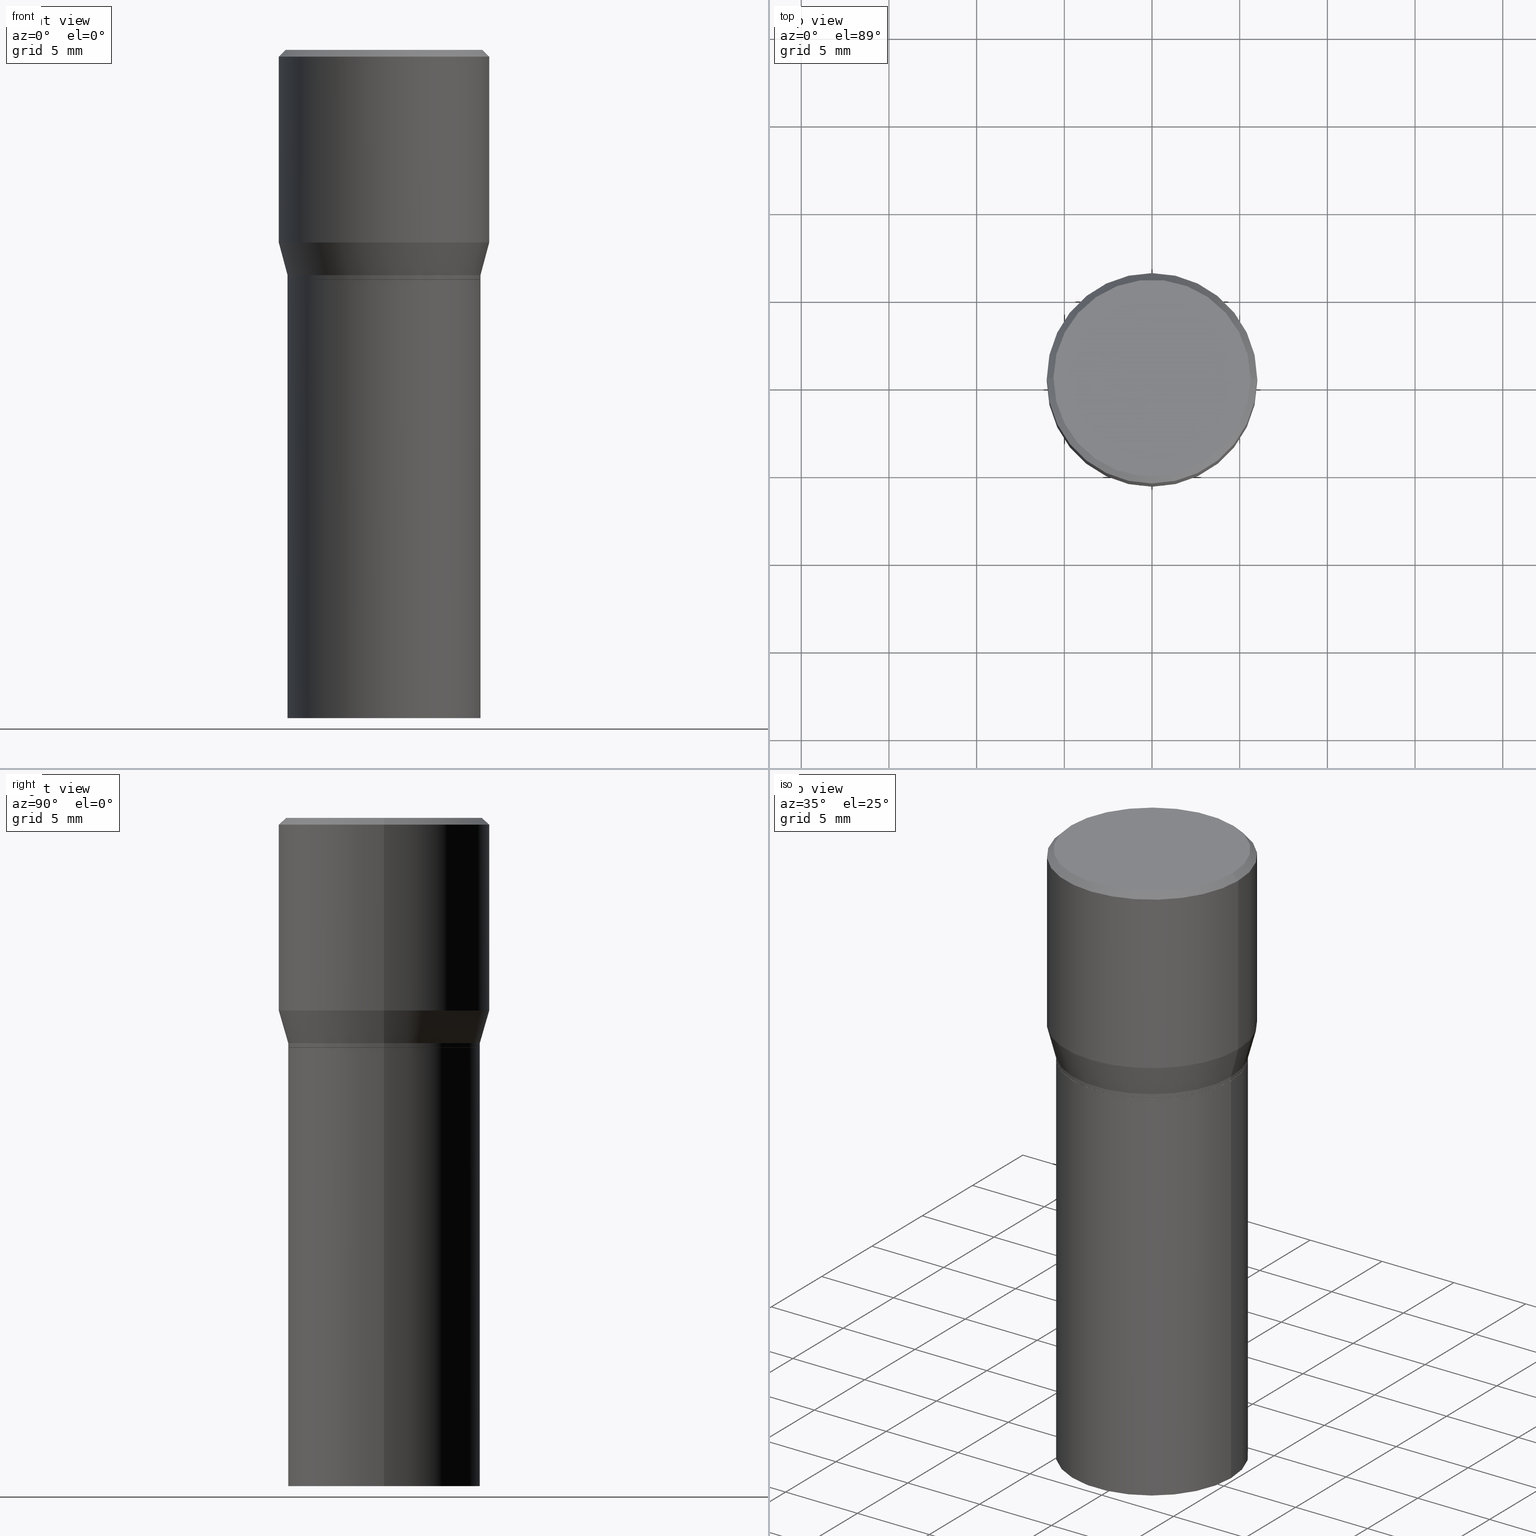
[diagram: canonical four-view strip — front | top / right | iso, engineering-drawing reading convention]
A machine part, canonical four-view strip (front | top / right | iso — engineering-drawing reading convention). The complete STEP part file that produces these views, byte-faithful:
ISO-10303-21;
HEADER;
FILE_DESCRIPTION (( 'STEP AP203' ),
    '1' );
FILE_NAME ('48514.STEP',
    '2024-03-12T19:28:06',
    ( '' ),
    ( '' ),
    'SwSTEP 2.0',
    'SolidWorks 2023',
    '' );
FILE_SCHEMA (( 'CONFIG_CONTROL_DESIGN' ));
ENDSEC;

DATA;
#1 = EDGE_LOOP ( 'NONE', ( #137, #136, #26, #104 ) ) ;
#2 = CALENDAR_DATE ( 2024, 12, 3 ) ;
#3 = AXIS2_PLACEMENT_3D ( 'NONE', #87, #150, #299 ) ;
#4 = PLANE ( 'NONE',  #93 ) ;
#5 = EDGE_CURVE ( 'NONE', #217, #208, #198, .T. ) ;
#6 = LINE ( 'NONE', #401, #260 ) ;
#7 = ORIENTED_EDGE ( 'NONE', *, *, #428, .F. ) ;
#8 = DIRECTION ( 'NONE',  ( -2.445468806185136597E-29, 3.491481338843145583E-15, 1.000000000000000000 ) ) ;
#9 = ORIENTED_EDGE ( 'NONE', *, *, #449, .T. ) ;
#10 = CIRCLE ( 'NONE', #43, 0.2212000000000000077 ) ;
#11 = PERSON_AND_ORGANIZATION ( #294, #389 ) ;
#12 = LOCAL_TIME ( 15, 28, 6.000000000000000000, #105 ) ;
#13 = DIRECTION ( 'NONE',  ( 1.000000000000000000, -6.982962677686266711E-15, 0.000000000000000000 ) ) ;
#14 = DIRECTION ( 'NONE',  ( -2.445468806185136597E-29, 3.491481338843145583E-15, 1.000000000000000000 ) ) ;
#15 = DIRECTION ( 'NONE',  ( -2.445468806185136597E-29, 3.491481338843145583E-15, 1.000000000000000000 ) ) ;
#16 = PERSON_AND_ORGANIZATION_ROLE ( 'classification_officer' ) ;
#17 = ADVANCED_FACE ( 'NONE', ( #259 ), #35, .T. ) ;
#18 = AXIS2_PLACEMENT_3D ( 'NONE', #80, #138, #313 ) ;
#19 = DIRECTION ( 'NONE',  ( -2.445468806185136597E-29, 3.491481338843145583E-15, 1.000000000000000000 ) ) ;
#20 = ORIENTED_EDGE ( 'NONE', *, *, #155, .T. ) ;
#21 = CARTESIAN_POINT ( 'NONE',  ( 1.057335613469222325E-29, -1.509595033060739709E-15, -0.4323652016312719004 ) ) ;
#22 = EDGE_CURVE ( 'NONE', #464, #269, #386, .T. ) ;
#23 = CIRCLE ( 'NONE', #280, 0.2361999999999999933 ) ;
#24 = FACE_OUTER_BOUND ( 'NONE', #193, .T. ) ;
#25 = LOCAL_TIME ( 15, 28, 6.000000000000000000, #424 ) ;
#26 = ORIENTED_EDGE ( 'NONE', *, *, #67, .F. ) ;
#27 = LINE ( 'NONE', #162, #36 ) ;
#28 = VECTOR ( 'NONE', #169, 39.37007874015748143 ) ;
#29 = DATE_AND_TIME ( #2, #215 ) ;
#30 = APPLICATION_PROTOCOL_DEFINITION ( 'international standard', 'config_control_design', 1994, #429 ) ;
#31 = ORIENTED_EDGE ( 'NONE', *, *, #372, .F. ) ;
#32 = CALENDAR_DATE ( 2024, 12, 3 ) ;
#33 = AXIS2_PLACEMENT_3D ( 'NONE', #120, #146, #263 ) ;
#34 = ORIENTED_EDGE ( 'NONE', *, *, #158, .F. ) ;
#35 = CONICAL_SURFACE ( 'NONE', #33, 0.2361999999999999933, 0.7853981633974459475 ) ;
#36 = VECTOR ( 'NONE', #134, 39.37007874015748143 ) ;
#37 = ORIENTED_EDGE ( 'NONE', *, *, #338, .F. ) ;
#38 = DIRECTION ( 'NONE',  ( 1.000000000000000000, -6.982962677686267499E-15, 4.877828720335458505E-29 ) ) ;
#39 = ORIENTED_EDGE ( 'NONE', *, *, #109, .T. ) ;
#40 = ADVANCED_FACE ( 'NONE', ( #145 ), #184, .T. ) ;
#41 = PERSON_AND_ORGANIZATION ( #294, #389 ) ;
#42 = EDGE_LOOP ( 'NONE', ( #37, #440, #68, #435 ) ) ;
#43 = AXIS2_PLACEMENT_3D ( 'NONE', #399, #438, #38 ) ;
#44 = CALENDAR_DATE ( 2024, 12, 3 ) ;
#45 = DIRECTION ( 'NONE',  ( 1.000000000000000000, -6.982962677686266711E-15, 4.876176775795935793E-29 ) ) ;
#46 = PRODUCT ( '48514', '48514', '', ( #132 ) ) ;
#47 = CARTESIAN_POINT ( 'NONE',  ( 0.2361999999999999933, -3.158970817530236235E-15, -0.4323652016312719004 ) ) ;
#48 = DESIGN_CONTEXT ( 'detailed design', #336, 'design' ) ;
#49 = DIRECTION ( 'NONE',  ( 1.000000000000000000, -6.982962677686267499E-15, 0.000000000000000000 ) ) ;
#50 = CALENDAR_DATE ( 2024, 12, 3 ) ;
#51 = AXIS2_PLACEMENT_3D ( 'NONE', #452, #19, #49 ) ;
#52 = VECTOR ( 'NONE', #266, 39.37007874015748143 ) ;
#53 = LINE ( 'NONE', #300, #89 ) ;
#54 = FACE_OUTER_BOUND ( 'NONE', #327, .T. ) ;
#55 = PLANE ( 'NONE',  #371 ) ;
#56 = PLANE ( 'NONE',  #110 ) ;
#57 = DIRECTION ( 'NONE',  ( 1.000000000000000000, -6.982962677686266711E-15, 0.000000000000000000 ) ) ;
#58 = CC_DESIGN_SECURITY_CLASSIFICATION ( #421, ( #378 ) ) ;
#59 = CARTESIAN_POINT ( 'NONE',  ( -0.2165500000000000203, -2.601308914834925589E-16, -0.5152000000000002133 ) ) ;
#60 = DIRECTION ( 'NONE',  ( 1.000000000000000000, -6.982962677686265922E-15, 4.876176775795935793E-29 ) ) ;
#61 = EDGE_CURVE ( 'NONE', #367, #353, #414, .T. ) ;
#62 = CARTESIAN_POINT ( 'NONE',  ( 1.261128263349675426E-29, -1.800556926441410962E-15, -0.5157000000000001583 ) ) ;
#63 = DIRECTION ( 'NONE',  ( -2.445468806185136877E-29, 3.491481338843145188E-15, 1.000000000000000000 ) ) ;
#64 = AXIS2_PLACEMENT_3D ( 'NONE', #220, #152, #45 ) ;
#65 = PERSON_AND_ORGANIZATION ( #294, #389 ) ;
#66 = LINE ( 'NONE', #425, #28 ) ;
#67 = EDGE_CURVE ( 'NONE', #353, #367, #244, .T. ) ;
#68 = ORIENTED_EDGE ( 'NONE', *, *, #289, .T. ) ;
#69 = PERSON_AND_ORGANIZATION_ROLE ( 'design_owner' ) ;
#70 = FACE_OUTER_BOUND ( 'NONE', #42, .T. ) ;
#71 = APPROVAL ( #335, 'UNSPECIFIED' ) ;
#72 = VERTEX_POINT ( 'NONE', #373 ) ;
#73 = FACE_OUTER_BOUND ( 'NONE', #91, .T. ) ;
#74 = AXIS2_PLACEMENT_3D ( 'NONE', #85, #374, #344 ) ;
#75 = ORIENTED_EDGE ( 'NONE', *, *, #428, .T. ) ;
#76 = AXIS2_PLACEMENT_3D ( 'NONE', #133, #285, #173 ) ;
#77 = ADVANCED_FACE ( 'NONE', ( #411 ), #337, .T. ) ;
#78 = MANIFOLD_SOLID_BREP ( 'Body-Move/Copy2[1]', #147 ) ;
#79 = ORIENTED_EDGE ( 'NONE', *, *, #61, .T. ) ;
#80 = CARTESIAN_POINT ( 'NONE',  ( 1.261128263349675426E-29, -1.800556926441410962E-15, -0.5157000000000001583 ) ) ;
#81 = ORIENTED_EDGE ( 'NONE', *, *, #22, .T. ) ;
#82 = ORIENTED_EDGE ( 'NONE', *, *, #315, .F. ) ;
#83 = AXIS2_PLACEMENT_3D ( 'NONE', #319, #423, #466 ) ;
#84 = APPROVAL_PERSON_ORGANIZATION ( #242, #151, #206 ) ;
#85 = CARTESIAN_POINT ( 'NONE',  ( 1.261128263349675426E-29, -1.800556926441410962E-15, -0.5157000000000001583 ) ) ;
#86 = PERSON_AND_ORGANIZATION_ROLE ( 'design_supplier' ) ;
#87 = CARTESIAN_POINT ( 'NONE',  ( 1.236673575287824021E-29, -1.765642113052979313E-15, -0.5057000000000001494 ) ) ;
#88 = VERTEX_POINT ( 'NONE', #222 ) ;
#89 = VECTOR ( 'NONE', #297, 39.37007874015748143 ) ;
#90 = CARTESIAN_POINT ( 'NONE',  ( 0.2212000000000000077, -1.595182002131672613E-15, 4.701447564593453826E-17 ) ) ;
#91 = EDGE_LOOP ( 'NONE', ( #361, #447, #231, #31 ) ) ;
#92 = CARTESIAN_POINT ( 'NONE',  ( 1.236673575287824021E-29, -1.765642113052979313E-15, -0.5057000000000001494 ) ) ;
#93 = AXIS2_PLACEMENT_3D ( 'NONE', #210, #462, #252 ) ;
#94 = VECTOR ( 'NONE', #247, 39.37007874015748143 ) ;
#95 = EDGE_CURVE ( 'NONE', #88, #175, #165, .T. ) ;
#96 = LINE ( 'NONE', #463, #205 ) ;
#97 = CARTESIAN_POINT ( 'NONE',  ( -0.2165500000000000480, 1.538680294288497294E-15, -1.065195393794700063E-29 ) ) ;
#98 = DIRECTION ( 'NONE',  ( 0.000000000000000000, 0.000000000000000000, 1.000000000000000000 ) ) ;
#99 = CYLINDRICAL_SURFACE ( 'NONE', #402, 0.2165500000000000203 ) ;
#100 = FACE_OUTER_BOUND ( 'NONE', #375, .T. ) ;
#101 = EDGE_CURVE ( 'NONE', #269, #464, #333, .T. ) ;
#102 = ORIENTED_EDGE ( 'NONE', *, *, #413, .T. ) ;
#103 = COORDINATED_UNIVERSAL_TIME_OFFSET ( 5, 0, .BEHIND. ) ;
#104 = ORIENTED_EDGE ( 'NONE', *, *, #279, .F. ) ;
#105 = COORDINATED_UNIVERSAL_TIME_OFFSET ( 5, 0, .BEHIND. ) ;
#106 = LINE ( 'NONE', #167, #409 ) ;
#107 = ORIENTED_EDGE ( 'NONE', *, *, #95, .F. ) ;
#108 = ORIENTED_EDGE ( 'NONE', *, *, #22, .F. ) ;
#109 = EDGE_CURVE ( 'NONE', #88, #276, #221, .T. ) ;
#110 = AXIS2_PLACEMENT_3D ( 'NONE', #196, #238, #417 ) ;
#111 = CARTESIAN_POINT ( 'NONE',  ( -0.2165500000000000203, 1.538680294288497096E-15, -1.065195393794699923E-29 ) ) ;
#112 = ORIENTED_EDGE ( 'NONE', *, *, #385, .F. ) ;
#113 = APPROVAL_DATE_TIME ( #291, #71 ) ;
#114 = CARTESIAN_POINT ( 'NONE',  ( 1.057335613469222325E-29, -1.509595033060739709E-15, -0.4323652016312719004 ) ) ;
#115 = APPROVAL_ROLE ( '' ) ;
#116 = CARTESIAN_POINT ( 'NONE',  ( 0.000000000000000000, 0.000000000000000000, 0.000000000000000000 ) ) ;
#117 = AXIS2_PLACEMENT_3D ( 'NONE', #62, #202, #343 ) ;
#118 = CARTESIAN_POINT ( 'NONE',  ( 0.2160500000000000198, -3.309226012955529172E-15, -0.5157000000000001583 ) ) ;
#119 = CARTESIAN_POINT ( 'NONE',  ( 1.236673575287824021E-29, -1.765642113052979313E-15, -0.5057000000000001494 ) ) ;
#120 = CARTESIAN_POINT ( 'NONE',  ( 3.668203209277705088E-31, -5.237222008264718399E-17, -0.01499999999999999944 ) ) ;
#121 = LINE ( 'NONE', #124, #52 ) ;
#122 = VECTOR ( 'NONE', #241, 39.37007874015748143 ) ;
#123 = FACE_OUTER_BOUND ( 'NONE', #437, .T. ) ;
#124 = CARTESIAN_POINT ( 'NONE',  ( -0.2361999999999999933, 1.678301941865356591E-15, -1.161852468318208757E-29 ) ) ;
#125 = EDGE_CURVE ( 'NONE', #175, #88, #288, .T. ) ;
#126 = CIRCLE ( 'NONE', #460, 0.2165500000000000203 ) ;
#127 = LOCAL_TIME ( 15, 28, 6.000000000000000000, #224 ) ;
#128 = VERTEX_POINT ( 'NONE', #90 ) ;
#129 = CARTESIAN_POINT ( 'NONE',  ( 0.000000000000000000, 0.000000000000000000, 0.000000000000000000 ) ) ;
#130 = DIRECTION ( 'NONE',  ( 1.000000000000000000, -6.982962677686267499E-15, 4.877828720335458505E-29 ) ) ;
#131 = ORIENTED_EDGE ( 'NONE', *, *, #355, .T. ) ;
#132 = MECHANICAL_CONTEXT ( 'NONE', #429, 'mechanical' ) ;
#133 = CARTESIAN_POINT ( 'NONE',  ( 3.668203209277705088E-31, -5.237222008264718399E-17, -0.01499999999999999944 ) ) ;
#134 = DIRECTION ( 'NONE',  ( -2.445468806185136877E-29, 3.491481338843145188E-15, 1.000000000000000000 ) ) ;
#135 = AXIS2_PLACEMENT_3D ( 'NONE', #382, #453, #60 ) ;
#136 = ORIENTED_EDGE ( 'NONE', *, *, #178, .T. ) ;
#137 = ORIENTED_EDGE ( 'NONE', *, *, #248, .T. ) ;
#138 = DIRECTION ( 'NONE',  ( -2.445468806185136597E-29, 3.491481338843145583E-15, 1.000000000000000000 ) ) ;
#139 = VERTEX_POINT ( 'NONE', #229 ) ;
#140 = VERTEX_POINT ( 'NONE', #47 ) ;
#141 = CONICAL_SURFACE ( 'NONE', #340, 0.2160500000000000198, 0.7853981633974824739 ) ;
#142 = PERSON_AND_ORGANIZATION ( #294, #389 ) ;
#143 = CC_DESIGN_DATE_AND_TIME_ASSIGNMENT ( #209, #246, ( #455 ) ) ;
#144 = DIRECTION ( 'NONE',  ( 1.000000000000000000, -6.982962677686266711E-15, 4.876176775795935793E-29 ) ) ;
#145 = FACE_OUTER_BOUND ( 'NONE', #1, .T. ) ;
#146 = DIRECTION ( 'NONE',  ( 2.445468806185136597E-29, -3.491481338843145583E-15, -1.000000000000000000 ) ) ;
#147 = CLOSED_SHELL ( 'NONE', ( #77, #352, #406, #186 ) ) ;
#148 = CIRCLE ( 'NONE', #420, 0.2212000000000000077 ) ;
#149 = AXIS2_PLACEMENT_3D ( 'NONE', #129, #98, #362 ) ;
#150 = DIRECTION ( 'NONE',  ( -2.445468806185136597E-29, 3.491481338843145583E-15, 1.000000000000000000 ) ) ;
#151 = APPROVAL ( #282, 'UNSPECIFIED' ) ;
#152 = DIRECTION ( 'NONE',  ( -2.445468806185136597E-29, 3.491481338843145583E-15, 1.000000000000000000 ) ) ;
#153 = DIRECTION ( 'NONE',  ( 1.000000000000000000, -6.982962677686264344E-15, 0.000000000000000000 ) ) ;
#154 = AXIS2_PLACEMENT_3D ( 'NONE', #293, #264, #410 ) ;
#155 = EDGE_CURVE ( 'NONE', #140, #251, #23, .T. ) ;
#156 =( CONVERSION_BASED_UNIT ( 'INCH', #309 ) LENGTH_UNIT ( ) NAMED_UNIT ( #458 ) );
#157 = UNCERTAINTY_MEASURE_WITH_UNIT (LENGTH_MEASURE( 1.000000000000000082E-05 ), #156, 'distance_accuracy_value', 'NONE');
#158 = EDGE_CURVE ( 'NONE', #140, #269, #53, .T. ) ;
#159 = CARTESIAN_POINT ( 'NONE',  ( -0.2165500000000000203, -1.980209173064567670E-15, -0.5157000000000001583 ) ) ;
#160 =( NAMED_UNIT ( * ) PLANE_ANGLE_UNIT ( ) SI_UNIT ( $, .RADIAN. ) );
#161 = PRODUCT_RELATED_PRODUCT_CATEGORY ( 'detail', '', ( #46 ) ) ;
#162 = CARTESIAN_POINT ( 'NONE',  ( 0.2165500000000000480, -1.512160567852961414E-15, 1.055936080798610176E-29 ) ) ;
#163 = DIRECTION ( 'NONE',  ( -2.445468806185136597E-29, 3.491481338843145583E-15, 1.000000000000000000 ) ) ;
#164 = CARTESIAN_POINT ( 'NONE',  ( 1.236673575287824021E-29, -1.765642113052979313E-15, -0.5057000000000001494 ) ) ;
#165 = CIRCLE ( 'NONE', #51, 0.2160500000000000198 ) ;
#166 = PERSON_AND_ORGANIZATION_ROLE ( 'creator' ) ;
#167 = CARTESIAN_POINT ( 'NONE',  ( 0.2165500000000000480, -3.277802680905940530E-15, -0.5057000000000001494 ) ) ;
#168 = PERSON_AND_ORGANIZATION ( #294, #389 ) ;
#169 = DIRECTION ( 'NONE',  ( -0.7071067811865459074, 2.468850131082239706E-15, -0.7071067811865492381 ) ) ;
#170 = FACE_OUTER_BOUND ( 'NONE', #426, .T. ) ;
#171 = ORIENTED_EDGE ( 'NONE', *, *, #385, .T. ) ;
#172 = DATE_AND_TIME ( #32, #12 ) ;
#173 = DIRECTION ( 'NONE',  ( -1.000000000000000000, 6.982962677686266711E-15, 0.000000000000000000 ) ) ;
#174 = AXIS2_PLACEMENT_3D ( 'NONE', #457, #163, #271 ) ;
#175 = VERTEX_POINT ( 'NONE', #118 ) ;
#176 = CC_DESIGN_APPROVAL ( #329, ( #455 ) ) ;
#177 = DIRECTION ( 'NONE',  ( -2.445468806185136877E-29, 3.491481338843145188E-15, 1.000000000000000000 ) ) ;
#178 = EDGE_CURVE ( 'NONE', #276, #367, #257, .T. ) ;
#179 = ORIENTED_EDGE ( 'NONE', *, *, #349, .T. ) ;
#180 = DIRECTION ( 'NONE',  ( -2.445468806185136597E-29, 3.491481338843145583E-15, 1.000000000000000000 ) ) ;
#181 = EDGE_LOOP ( 'NONE', ( #179, #216, #325, #450 ) ) ;
#182 = ORIENTED_EDGE ( 'NONE', *, *, #449, .F. ) ;
#183 = CIRCLE ( 'NONE', #324, 0.2165500000000000203 ) ;
#184 = CYLINDRICAL_SURFACE ( 'NONE', #64, 0.2165500000000000480 ) ;
#185 = DIRECTION ( 'NONE',  ( -2.445468806185136597E-29, 3.491481338843145583E-15, 1.000000000000000000 ) ) ;
#186 = ADVANCED_FACE ( 'NONE', ( #348 ), #55, .F. ) ;
#187 = DATE_AND_TIME ( #44, #127 ) ;
#188 = CARTESIAN_POINT ( 'NONE',  ( -0.2160500000000000198, -2.654293458317144186E-16, -0.5157000000000001583 ) ) ;
#189 = CIRCLE ( 'NONE', #305, 0.2165500000000000203 ) ;
#190 = CC_DESIGN_PERSON_AND_ORGANIZATION_ASSIGNMENT ( #65, #69, ( #46 ) ) ;
#191 = AXIS2_PLACEMENT_3D ( 'NONE', #92, #195, #306 ) ;
#192 = EDGE_CURVE ( 'NONE', #139, #430, #312, .T. ) ;
#193 = EDGE_LOOP ( 'NONE', ( #20, #9, #212, #34 ) ) ;
#194 = CARTESIAN_POINT ( 'NONE',  ( 0.000000000000000000, 0.000000000000000000, 0.000000000000000000 ) ) ;
#195 = DIRECTION ( 'NONE',  ( -2.445468806185136597E-29, 3.491481338843145583E-15, 1.000000000000000000 ) ) ;
#196 = CARTESIAN_POINT ( 'NONE',  ( 1.544631344304202170E-15, 0.2212000000000000077, -7.488084343291421542E-16 ) ) ;
#197 = ADVANCED_FACE ( 'NONE', ( #24 ), #237, .T. ) ;
#198 = CIRCLE ( 'NONE', #74, 0.2165500000000000203 ) ;
#199 = CONICAL_SURFACE ( 'NONE', #76, 0.2361999999999999933, 0.7853981633974459475 ) ;
#200 = ORIENTED_EDGE ( 'NONE', *, *, #301, .F. ) ;
#201 = CYLINDRICAL_SURFACE ( 'NONE', #236, 0.2361999999999999933 ) ;
#202 = DIRECTION ( 'NONE',  ( -2.445468806185136597E-29, 3.491481338843145583E-15, 1.000000000000000000 ) ) ;
#203 = EDGE_LOOP ( 'NONE', ( #249, #320 ) ) ;
#204 = CC_DESIGN_PERSON_AND_ORGANIZATION_ASSIGNMENT ( #41, #86, ( #378 ) ) ;
#205 = VECTOR ( 'NONE', #63, 39.37007874015748143 ) ;
#206 = APPROVAL_ROLE ( '' ) ;
#207 = FACE_OUTER_BOUND ( 'NONE', #287, .T. ) ;
#208 = VERTEX_POINT ( 'NONE', #159 ) ;
#209 = DATE_AND_TIME ( #250, #25 ) ;
#210 = CARTESIAN_POINT ( 'NONE',  ( 3.576687321579069994E-29, -5.368277968210015545E-15, -1.500000000000000222 ) ) ;
#211 = DIRECTION ( 'NONE',  ( 1.000000000000000000, -6.982962677686266711E-15, 0.000000000000000000 ) ) ;
#212 = ORIENTED_EDGE ( 'NONE', *, *, #101, .F. ) ;
#213 = LINE ( 'NONE', #111, #296 ) ;
#214 = CONICAL_SURFACE ( 'NONE', #18, 0.2160500000000000198, 0.7853981633974824739 ) ;
#215 = LOCAL_TIME ( 15, 28, 6.000000000000000000, #103 ) ;
#216 = ORIENTED_EDGE ( 'NONE', *, *, #338, .T. ) ;
#217 = VERTEX_POINT ( 'NONE', #308 ) ;
#218 = ADVANCED_FACE ( 'NONE', ( #311 ), #304, .F. ) ;
#219 = EDGE_LOOP ( 'NONE', ( #200, #82, #369, #81 ) ) ;
#220 = CARTESIAN_POINT ( 'NONE',  ( 0.000000000000000000, 0.000000000000000000, 0.000000000000000000 ) ) ;
#221 = LINE ( 'NONE', #188, #265 ) ;
#222 = CARTESIAN_POINT ( 'NONE',  ( -0.2160500000000000198, -2.627801186576033655E-16, -0.5157000000000001583 ) ) ;
#223 = MANIFOLD_SOLID_BREP ( 'Body-Move/Copy2[2]', #408 ) ;
#224 = COORDINATED_UNIVERSAL_TIME_OFFSET ( 5, 0, .BEHIND. ) ;
#225 = DIRECTION ( 'NONE',  ( -0.7071067811865715536, 7.493145998870439357E-15, 0.7071067811865232589 ) ) ;
#226 = AXIS2_PLACEMENT_3D ( 'NONE', #164, #273, #211 ) ;
#227 = DIRECTION ( 'NONE',  ( -2.445468806185136597E-29, 3.491481338843145583E-15, 1.000000000000000000 ) ) ;
#228 = APPROVAL_PERSON_ORGANIZATION ( #142, #71, #115 ) ;
#229 = CARTESIAN_POINT ( 'NONE',  ( -0.2165500000000000203, -1.980209173064567670E-15, -1.500000000000000222 ) ) ;
#230 = ADVANCED_FACE ( 'NONE', ( #123 ), #56, .F. ) ;
#231 = ORIENTED_EDGE ( 'NONE', *, *, #101, .T. ) ;
#232 = CARTESIAN_POINT ( 'NONE',  ( -0.2361999999999999933, 8.973183152936629998E-16, -0.01499999999999999944 ) ) ;
#233 = CARTESIAN_POINT ( 'NONE',  ( 3.668203209277704895E-29, -5.237222008264718177E-15, -1.500000000000000222 ) ) ;
#234 = EDGE_LOOP ( 'NONE', ( #245, #79, #131, #396 ) ) ;
#235 = CONICAL_SURFACE ( 'NONE', #226, 0.2165500000000000480, 0.2617993877991494078 ) ;
#236 = AXIS2_PLACEMENT_3D ( 'NONE', #194, #345, #416 ) ;
#237 = CYLINDRICAL_SURFACE ( 'NONE', #174, 0.2361999999999999933 ) ;
#238 = DIRECTION ( 'NONE',  ( 2.438088387897960049E-29, -3.491481338843145188E-15, -1.000000000000000000 ) ) ;
#239 = CC_DESIGN_PERSON_AND_ORGANIZATION_ASSIGNMENT ( #168, #166, ( #455 ) ) ;
#240 = APPROVAL_DATE_TIME ( #172, #151 ) ;
#241 = DIRECTION ( 'NONE',  ( -2.445468806185136877E-29, 3.491481338843145188E-15, 1.000000000000000000 ) ) ;
#242 = PERSON_AND_ORGANIZATION ( #294, #389 ) ;
#243 = DIRECTION ( 'NONE',  ( -2.445468806185136597E-29, 3.491481338843145583E-15, 1.000000000000000000 ) ) ;
#244 = CIRCLE ( 'NONE', #393, 0.2165500000000000480 ) ;
#245 = ORIENTED_EDGE ( 'NONE', *, *, #413, .F. ) ;
#246 = DATE_TIME_ROLE ( 'creation_date' ) ;
#247 = DIRECTION ( 'NONE',  ( 0.7071067811865459074, -7.319954787623251312E-15, -0.7071067811865492381 ) ) ;
#248 = EDGE_CURVE ( 'NONE', #72, #276, #183, .T. ) ;
#249 = ORIENTED_EDGE ( 'NONE', *, *, #5, .T. ) ;
#250 = CALENDAR_DATE ( 2024, 12, 3 ) ;
#251 = VERTEX_POINT ( 'NONE', #390 ) ;
#252 = DIRECTION ( 'NONE',  ( 1.000000000000000000, -6.982962677686265922E-15, 4.876176775795935793E-29 ) ) ;
#253 = AXIS2_PLACEMENT_3D ( 'NONE', #292, #412, #377 ) ;
#254 = EDGE_LOOP ( 'NONE', ( #405, #391 ) ) ;
#255 = DIRECTION ( 'NONE',  ( 1.000000000000000000, -6.982962677686264344E-15, 0.000000000000000000 ) ) ;
#256 = ORIENTED_EDGE ( 'NONE', *, *, #355, .F. ) ;
#257 = LINE ( 'NONE', #97, #122 ) ;
#258 = DIRECTION ( 'NONE',  ( -0.2588190451025206840, 5.211531920934545520E-15, 0.9659258262890682012 ) ) ;
#259 = FACE_OUTER_BOUND ( 'NONE', #219, .T. ) ;
#260 = VECTOR ( 'NONE', #404, 39.37007874015748854 ) ;
#261 = AXIS2_PLACEMENT_3D ( 'NONE', #21, #302, #354 ) ;
#262 = EDGE_CURVE ( 'NONE', #208, #217, #445, .T. ) ;
#263 = DIRECTION ( 'NONE',  ( -1.000000000000000000, 6.982962677686266711E-15, 0.000000000000000000 ) ) ;
#264 = DIRECTION ( 'NONE',  ( -2.445468806185136597E-29, 3.491481338843145583E-15, 1.000000000000000000 ) ) ;
#265 = VECTOR ( 'NONE', #225, 39.37007874015748854 ) ;
#266 = DIRECTION ( 'NONE',  ( -2.445468806185136877E-29, 3.491481338843145188E-15, 1.000000000000000000 ) ) ;
#267 = LOCAL_TIME ( 15, 28, 6.000000000000000000, #376 ) ;
#268 = DIRECTION ( 'NONE',  ( -2.445468806185136597E-29, 3.491481338843145583E-15, 1.000000000000000000 ) ) ;
#269 = VERTEX_POINT ( 'NONE', #384 ) ;
#270 = LINE ( 'NONE', #432, #94 ) ;
#271 = DIRECTION ( 'NONE',  ( 1.000000000000000000, -6.982962677686266711E-15, 4.876176775795936353E-29 ) ) ;
#272 = ADVANCED_FACE ( 'NONE', ( #392 ), #235, .T. ) ;
#273 = DIRECTION ( 'NONE',  ( -2.445468806185136597E-29, 3.491481338843145583E-15, 1.000000000000000000 ) ) ;
#274 = APPROVAL_ROLE ( '' ) ;
#275 = CARTESIAN_POINT ( 'NONE',  ( 1.261128263349675426E-29, -1.800556926441410962E-15, -0.5157000000000001583 ) ) ;
#276 = VERTEX_POINT ( 'NONE', #59 ) ;
#277 = CC_DESIGN_PERSON_AND_ORGANIZATION_ASSIGNMENT ( #332, #16, ( #421 ) ) ;
#278 = DIRECTION ( 'NONE',  ( -2.445468806185136597E-29, 3.491481338843145583E-15, 1.000000000000000000 ) ) ;
#279 = EDGE_CURVE ( 'NONE', #72, #353, #27, .T. ) ;
#280 = AXIS2_PLACEMENT_3D ( 'NONE', #114, #185, #339 ) ;
#281 = EDGE_LOOP ( 'NONE', ( #418, #107 ) ) ;
#282 = APPROVAL_STATUS ( 'not_yet_approved' ) ;
#283 = LINE ( 'NONE', #318, #358 ) ;
#284 = ORIENTED_EDGE ( 'NONE', *, *, #67, .T. ) ;
#285 = DIRECTION ( 'NONE',  ( 2.445468806185136597E-29, -3.491481338843145583E-15, -1.000000000000000000 ) ) ;
#286 = ADVANCED_FACE ( 'NONE', ( #170 ), #314, .T. ) ;
#287 = EDGE_LOOP ( 'NONE', ( #290, #39, #415, #112 ) ) ;
#288 = CIRCLE ( 'NONE', #253, 0.2160500000000000198 ) ;
#289 = EDGE_CURVE ( 'NONE', #430, #217, #96, .T. ) ;
#290 = ORIENTED_EDGE ( 'NONE', *, *, #125, .T. ) ;
#291 = DATE_AND_TIME ( #50, #267 ) ;
#292 = CARTESIAN_POINT ( 'NONE',  ( 1.261128263349675426E-29, -1.800556926441410962E-15, -0.5157000000000001583 ) ) ;
#293 = CARTESIAN_POINT ( 'NONE',  ( 3.668203209277705088E-31, -5.237222008264718399E-17, -0.01499999999999999944 ) ) ;
#294 = PERSON ( 'UNSPECIFIED', 'UNSPECIFIED', 'UNSPECIFIED', ('UNSPECIFIED'), ('UNSPECIFIED'), ('UNSPECIFIED') ) ;
#295 = ADVANCED_FACE ( 'NONE', ( #100 ), #141, .T. ) ;
#296 = VECTOR ( 'NONE', #177, 39.37007874015748143 ) ;
#297 = DIRECTION ( 'NONE',  ( -2.445468806185136877E-29, 3.491481338843145188E-15, 1.000000000000000000 ) ) ;
#298 = CIRCLE ( 'NONE', #261, 0.2361999999999999933 ) ;
#299 = DIRECTION ( 'NONE',  ( 1.000000000000000000, -6.982962677686266711E-15, 0.000000000000000000 ) ) ;
#300 = CARTESIAN_POINT ( 'NONE',  ( 0.2361999999999999933, -1.649375784469496131E-15, 1.151752954443000088E-29 ) ) ;
#301 = EDGE_CURVE ( 'NONE', #128, #269, #270, .T. ) ;
#302 = DIRECTION ( 'NONE',  ( -2.445468806185136597E-29, 3.491481338843145583E-15, 1.000000000000000000 ) ) ;
#303 = CC_DESIGN_PERSON_AND_ORGANIZATION_ASSIGNMENT ( #11, #442, ( #378 ) ) ;
#304 = PLANE ( 'NONE',  #135 ) ;
#305 = AXIS2_PLACEMENT_3D ( 'NONE', #326, #8, #255 ) ;
#306 = DIRECTION ( 'NONE',  ( 1.000000000000000000, -6.982962677686266711E-15, 0.000000000000000000 ) ) ;
#307 =( GEOMETRIC_REPRESENTATION_CONTEXT ( 3 ) GLOBAL_UNCERTAINTY_ASSIGNED_CONTEXT ( ( #157 ) ) GLOBAL_UNIT_ASSIGNED_CONTEXT ( ( #156, #160, #465 ) ) REPRESENTATION_CONTEXT ( 'NONE', 'WORKASPACE' ) );
#308 = CARTESIAN_POINT ( 'NONE',  ( 0.2165500000000000203, -3.312717494294371784E-15, -0.5157000000000001583 ) ) ;
#309 = LENGTH_MEASURE_WITH_UNIT ( LENGTH_MEASURE( 0.02539999999999999897 ), #350 );
#310 = CARTESIAN_POINT ( 'NONE',  ( 1.259905528946582905E-29, -1.798811185771989458E-15, -0.5152000000000002133 ) ) ;
#311 = FACE_OUTER_BOUND ( 'NONE', #281, .T. ) ;
#312 = CIRCLE ( 'NONE', #388, 0.2165500000000000203 ) ;
#313 = DIRECTION ( 'NONE',  ( 1.000000000000000000, -6.982962677686267499E-15, 0.000000000000000000 ) ) ;
#314 = CYLINDRICAL_SURFACE ( 'NONE', #83, 0.2165500000000000480 ) ;
#315 = EDGE_CURVE ( 'NONE', #331, #128, #10, .T. ) ;
#316 = ORIENTED_EDGE ( 'NONE', *, *, #279, .T. ) ;
#317 = EDGE_CURVE ( 'NONE', #128, #331, #148, .T. ) ;
#318 = CARTESIAN_POINT ( 'NONE',  ( -0.2165500000000000480, -2.269618187644819696E-16, -0.5057000000000001494 ) ) ;
#319 = CARTESIAN_POINT ( 'NONE',  ( 0.000000000000000000, 0.000000000000000000, 0.000000000000000000 ) ) ;
#320 = ORIENTED_EDGE ( 'NONE', *, *, #262, .T. ) ;
#321 = APPROVAL_STATUS ( 'not_yet_approved' ) ;
#322 = DIRECTION ( 'NONE',  ( 0.2588190451025206840, 1.565188264969626504E-15, 0.9659258262890682012 ) ) ;
#323 = DIRECTION ( 'NONE',  ( 1.000000000000000000, -6.982962677686267499E-15, 0.000000000000000000 ) ) ;
#324 = AXIS2_PLACEMENT_3D ( 'NONE', #310, #459, #422 ) ;
#325 = ORIENTED_EDGE ( 'NONE', *, *, #5, .F. ) ;
#326 = CARTESIAN_POINT ( 'NONE',  ( 3.668203209277704895E-29, -5.237222008264718177E-15, -1.500000000000000222 ) ) ;
#327 = EDGE_LOOP ( 'NONE', ( #182, #368, #383, #108 ) ) ;
#328 = CARTESIAN_POINT ( 'NONE',  ( 0.2165500000000000480, -3.277802680905940530E-15, -0.5057000000000001494 ) ) ;
#329 = APPROVAL ( #321, 'UNSPECIFIED' ) ;
#330 = ADVANCED_FACE ( 'NONE', ( #73 ), #199, .T. ) ;
#331 = VERTEX_POINT ( 'NONE', #427 ) ;
#332 = PERSON_AND_ORGANIZATION ( #294, #389 ) ;
#333 = CIRCLE ( 'NONE', #154, 0.2361999999999999933 ) ;
#334 = ORIENTED_EDGE ( 'NONE', *, *, #95, .T. ) ;
#335 = APPROVAL_STATUS ( 'not_yet_approved' ) ;
#336 = APPLICATION_CONTEXT ( 'configuration controlled 3d designs of mechanical parts and assemblies' ) ;
#337 = CYLINDRICAL_SURFACE ( 'NONE', #439, 0.2165500000000000203 ) ;
#338 = EDGE_CURVE ( 'NONE', #139, #208, #213, .T. ) ;
#339 = DIRECTION ( 'NONE',  ( 1.000000000000000000, -6.982962677686268288E-15, 0.000000000000000000 ) ) ;
#340 = AXIS2_PLACEMENT_3D ( 'NONE', #275, #278, #323 ) ;
#341 = DIRECTION ( 'NONE',  ( 1.000000000000000000, -6.982962677686266711E-15, 0.000000000000000000 ) ) ;
#342 = CARTESIAN_POINT ( 'NONE',  ( 1.259905528946582905E-29, -1.798811185771989458E-15, -0.5152000000000002133 ) ) ;
#343 = DIRECTION ( 'NONE',  ( 1.000000000000000000, -6.982962677686265133E-15, 0.000000000000000000 ) ) ;
#344 = DIRECTION ( 'NONE',  ( 1.000000000000000000, -6.982962677686265133E-15, 0.000000000000000000 ) ) ;
#345 = DIRECTION ( 'NONE',  ( -2.445468806185136597E-29, 3.491481338843145583E-15, 1.000000000000000000 ) ) ;
#346 = CC_DESIGN_DATE_AND_TIME_ASSIGNMENT ( #187, #448, ( #421 ) ) ;
#347 = CARTESIAN_POINT ( 'NONE',  ( 1.512160567852973444E-15, 0.2165499999999981884, -0.5157000000000009354 ) ) ;
#348 = FACE_OUTER_BOUND ( 'NONE', #203, .T. ) ;
#349 = EDGE_CURVE ( 'NONE', #430, #139, #189, .T. ) ;
#350 =( LENGTH_UNIT ( ) NAMED_UNIT ( * ) SI_UNIT ( $, .METRE. ) );
#351 = DIRECTION ( 'NONE',  ( 2.438088387897960049E-29, -3.491481338843145188E-15, -1.000000000000000000 ) ) ;
#352 = ADVANCED_FACE ( 'NONE', ( #436 ), #4, .F. ) ;
#353 = VERTEX_POINT ( 'NONE', #328 ) ;
#354 = DIRECTION ( 'NONE',  ( 1.000000000000000000, -6.982962677686268288E-15, 0.000000000000000000 ) ) ;
#355 = EDGE_CURVE ( 'NONE', #353, #140, #106, .T. ) ;
#356 = DIRECTION ( 'NONE',  ( -1.000000000000000000, 6.982962677686265922E-15, -4.876176775795935793E-29 ) ) ;
#357 = PERSON_AND_ORGANIZATION ( #294, #389 ) ;
#358 = VECTOR ( 'NONE', #258, 39.37007874015748854 ) ;
#359 = CONICAL_SURFACE ( 'NONE', #191, 0.2165500000000000480, 0.2617993877991494078 ) ;
#360 = DIRECTION ( 'NONE',  ( 1.000000000000000000, -6.982962677686266711E-15, 4.876176775795935793E-29 ) ) ;
#361 = ORIENTED_EDGE ( 'NONE', *, *, #317, .F. ) ;
#362 = DIRECTION ( 'NONE',  ( 1.000000000000000000, 0.000000000000000000, 0.000000000000000000 ) ) ;
#363 = CARTESIAN_POINT ( 'NONE',  ( 0.000000000000000000, 0.000000000000000000, 0.000000000000000000 ) ) ;
#364 = ORIENTED_EDGE ( 'NONE', *, *, #109, .F. ) ;
#365 = CARTESIAN_POINT ( 'NONE',  ( -1.149724336312568861E-45, 1.641501643732376549E-31, 4.701447564592356200E-17 ) ) ;
#366 = AXIS2_PLACEMENT_3D ( 'NONE', #443, #14, #13 ) ;
#367 = VERTEX_POINT ( 'NONE', #397 ) ;
#368 = ORIENTED_EDGE ( 'NONE', *, *, #434, .T. ) ;
#369 = ORIENTED_EDGE ( 'NONE', *, *, #372, .T. ) ;
#370 = SECURITY_CLASSIFICATION_LEVEL ( 'unclassified' ) ;
#371 = AXIS2_PLACEMENT_3D ( 'NONE', #347, #351, #356 ) ;
#372 = EDGE_CURVE ( 'NONE', #331, #464, #66, .T. ) ;
#373 = CARTESIAN_POINT ( 'NONE',  ( 0.2165500000000000203, -3.310971753624950675E-15, -0.5152000000000002133 ) ) ;
#374 = DIRECTION ( 'NONE',  ( -2.445468806185136597E-29, 3.491481338843145583E-15, 1.000000000000000000 ) ) ;
#375 = EDGE_LOOP ( 'NONE', ( #364, #334, #171, #7 ) ) ;
#376 = COORDINATED_UNIVERSAL_TIME_OFFSET ( 5, 0, .BEHIND. ) ;
#377 = DIRECTION ( 'NONE',  ( 1.000000000000000000, -6.982962677686267499E-15, 0.000000000000000000 ) ) ;
#378 = PRODUCT_DEFINITION_FORMATION_WITH_SPECIFIED_SOURCE ( 'ANY', '', #46, .NOT_KNOWN. ) ;
#379 = CARTESIAN_POINT ( 'NONE',  ( 0.2165500000000000203, -6.749382576117678999E-15, -1.500000000000000222 ) ) ;
#380 = ADVANCED_BREP_SHAPE_REPRESENTATION ( '48514', ( #78, #223, #149 ), #307 ) ;
#381 = ORIENTED_EDGE ( 'NONE', *, *, #61, .F. ) ;
#382 = CARTESIAN_POINT ( 'NONE',  ( 1.261128263349675426E-29, -1.800556926441410962E-15, -0.5157000000000001583 ) ) ;
#383 = ORIENTED_EDGE ( 'NONE', *, *, #158, .T. ) ;
#384 = CARTESIAN_POINT ( 'NONE',  ( 0.2361999999999999933, -1.701748004552143407E-15, -0.01499999999999999944 ) ) ;
#385 = EDGE_CURVE ( 'NONE', #175, #72, #6, .T. ) ;
#386 = CIRCLE ( 'NONE', #366, 0.2361999999999999933 ) ;
#387 = ORIENTED_EDGE ( 'NONE', *, *, #155, .F. ) ;
#388 = AXIS2_PLACEMENT_3D ( 'NONE', #233, #268, #153 ) ;
#389 = ORGANIZATION ( 'UNSPECIFIED', 'UNSPECIFIED', '' ) ;
#390 = CARTESIAN_POINT ( 'NONE',  ( -0.2361999999999999933, 1.687069088046168326E-16, -0.4323652016312719004 ) ) ;
#391 = ORIENTED_EDGE ( 'NONE', *, *, #192, .F. ) ;
#392 = FACE_OUTER_BOUND ( 'NONE', #234, .T. ) ;
#393 = AXIS2_PLACEMENT_3D ( 'NONE', #119, #407, #341 ) ;
#394 = ADVANCED_FACE ( 'NONE', ( #207 ), #214, .T. ) ;
#395 = APPROVAL_PERSON_ORGANIZATION ( #357, #329, #274 ) ;
#396 = ORIENTED_EDGE ( 'NONE', *, *, #434, .F. ) ;
#397 = CARTESIAN_POINT ( 'NONE',  ( -0.2165500000000000480, -2.912745497993258696E-17, -0.5057000000000001494 ) ) ;
#398 = ORIENTED_EDGE ( 'NONE', *, *, #317, .T. ) ;
#399 = CARTESIAN_POINT ( 'NONE',  ( -1.149724336312568861E-45, 1.641501643732376549E-31, 4.701447564592356200E-17 ) ) ;
#400 = ORIENTED_EDGE ( 'NONE', *, *, #315, .T. ) ;
#401 = CARTESIAN_POINT ( 'NONE',  ( 0.2160500000000000198, -3.309226012955529172E-15, -0.5157000000000001583 ) ) ;
#402 = AXIS2_PLACEMENT_3D ( 'NONE', #363, #243, #360 ) ;
#403 = EDGE_LOOP ( 'NONE', ( #284, #102, #387, #256 ) ) ;
#404 = DIRECTION ( 'NONE',  ( 0.7071067811865715536, -2.468850131082509496E-15, 0.7071067811865232589 ) ) ;
#405 = ORIENTED_EDGE ( 'NONE', *, *, #349, .F. ) ;
#406 = ADVANCED_FACE ( 'NONE', ( #70 ), #99, .T. ) ;
#407 = DIRECTION ( 'NONE',  ( -2.445468806185136597E-29, 3.491481338843145583E-15, 1.000000000000000000 ) ) ;
#408 = CLOSED_SHELL ( 'NONE', ( #40, #394, #330, #197, #456, #272, #433, #17, #230, #218, #295, #286 ) ) ;
#409 = VECTOR ( 'NONE', #322, 39.37007874015748854 ) ;
#410 = DIRECTION ( 'NONE',  ( 1.000000000000000000, -6.982962677686266711E-15, 0.000000000000000000 ) ) ;
#411 = FACE_OUTER_BOUND ( 'NONE', #181, .T. ) ;
#412 = DIRECTION ( 'NONE',  ( -2.445468806185136597E-29, 3.491481338843145583E-15, 1.000000000000000000 ) ) ;
#413 = EDGE_CURVE ( 'NONE', #367, #251, #283, .T. ) ;
#414 = CIRCLE ( 'NONE', #3, 0.2165500000000000480 ) ;
#415 = ORIENTED_EDGE ( 'NONE', *, *, #248, .F. ) ;
#416 = DIRECTION ( 'NONE',  ( 1.000000000000000000, -6.982962677686266711E-15, 4.876176775795936353E-29 ) ) ;
#417 = DIRECTION ( 'NONE',  ( -1.000000000000000000, 6.982962677686265922E-15, -4.876176775795935793E-29 ) ) ;
#418 = ORIENTED_EDGE ( 'NONE', *, *, #125, .F. ) ;
#419 = FACE_OUTER_BOUND ( 'NONE', #403, .T. ) ;
#420 = AXIS2_PLACEMENT_3D ( 'NONE', #365, #180, #130 ) ;
#421 = SECURITY_CLASSIFICATION ( '', '', #370 ) ;
#422 = DIRECTION ( 'NONE',  ( 1.000000000000000000, -6.982962677686266711E-15, 0.000000000000000000 ) ) ;
#423 = DIRECTION ( 'NONE',  ( -2.445468806185136597E-29, 3.491481338843145583E-15, 1.000000000000000000 ) ) ;
#424 = COORDINATED_UNIVERSAL_TIME_OFFSET ( 5, 0, .BEHIND. ) ;
#425 = CARTESIAN_POINT ( 'NONE',  ( -0.2361999999999999933, 1.597003564386848854E-15, -0.01499999999999999944 ) ) ;
#426 = EDGE_LOOP ( 'NONE', ( #441, #75, #316, #381 ) ) ;
#427 = CARTESIAN_POINT ( 'NONE',  ( -0.2212000000000000077, 1.570817454345525709E-15, 4.701447564591266586E-17 ) ) ;
#428 = EDGE_CURVE ( 'NONE', #276, #72, #126, .T. ) ;
#429 = APPLICATION_CONTEXT ( 'configuration controlled 3d designs of mechanical parts and assemblies' ) ;
#430 = VERTEX_POINT ( 'NONE', #379 ) ;
#431 = APPROVAL_DATE_TIME ( #29, #329 ) ;
#432 = CARTESIAN_POINT ( 'NONE',  ( 0.2361999999999999933, -1.672821847156282947E-15, -0.01499999999999999944 ) ) ;
#433 = ADVANCED_FACE ( 'NONE', ( #54 ), #201, .T. ) ;
#434 = EDGE_CURVE ( 'NONE', #251, #140, #298, .T. ) ;
#435 = ORIENTED_EDGE ( 'NONE', *, *, #262, .F. ) ;
#436 = FACE_OUTER_BOUND ( 'NONE', #254, .T. ) ;
#437 = EDGE_LOOP ( 'NONE', ( #400, #398 ) ) ;
#438 = DIRECTION ( 'NONE',  ( -2.445468806185136597E-29, 3.491481338843145583E-15, 1.000000000000000000 ) ) ;
#439 = AXIS2_PLACEMENT_3D ( 'NONE', #116, #15, #144 ) ;
#440 = ORIENTED_EDGE ( 'NONE', *, *, #192, .T. ) ;
#441 = ORIENTED_EDGE ( 'NONE', *, *, #178, .F. ) ;
#442 = PERSON_AND_ORGANIZATION_ROLE ( 'creator' ) ;
#443 = CARTESIAN_POINT ( 'NONE',  ( 3.668203209277705088E-31, -5.237222008264718399E-17, -0.01499999999999999944 ) ) ;
#444 = PRODUCT_DEFINITION_SHAPE ( 'NONE', 'NONE',  #455 ) ;
#445 = CIRCLE ( 'NONE', #117, 0.2165500000000000203 ) ;
#446 = CC_DESIGN_APPROVAL ( #151, ( #378 ) ) ;
#447 = ORIENTED_EDGE ( 'NONE', *, *, #301, .T. ) ;
#448 = DATE_TIME_ROLE ( 'classification_date' ) ;
#449 = EDGE_CURVE ( 'NONE', #251, #464, #121, .T. ) ;
#450 = ORIENTED_EDGE ( 'NONE', *, *, #289, .F. ) ;
#451 = SHAPE_DEFINITION_REPRESENTATION ( #444, #380 ) ;
#452 = CARTESIAN_POINT ( 'NONE',  ( 1.261128263349675426E-29, -1.800556926441410962E-15, -0.5157000000000001583 ) ) ;
#453 = DIRECTION ( 'NONE',  ( -2.438088387897960049E-29, 3.491481338843145188E-15, 1.000000000000000000 ) ) ;
#454 = CC_DESIGN_APPROVAL ( #71, ( #421 ) ) ;
#455 = PRODUCT_DEFINITION ( 'UNKNOWN', '', #378, #48 ) ;
#456 = ADVANCED_FACE ( 'NONE', ( #419 ), #359, .T. ) ;
#457 = CARTESIAN_POINT ( 'NONE',  ( 0.000000000000000000, 0.000000000000000000, 0.000000000000000000 ) ) ;
#458 = DIMENSIONAL_EXPONENTS ( 1.000000000000000000, 0.000000000000000000, 0.000000000000000000, 0.000000000000000000, 0.000000000000000000, 0.000000000000000000, 0.000000000000000000 ) ;
#459 = DIRECTION ( 'NONE',  ( -2.445468806185136597E-29, 3.491481338843145583E-15, 1.000000000000000000 ) ) ;
#460 = AXIS2_PLACEMENT_3D ( 'NONE', #342, #227, #57 ) ;
#461 = APPLICATION_PROTOCOL_DEFINITION ( 'international standard', 'config_control_design', 1994, #336 ) ;
#462 = DIRECTION ( 'NONE',  ( -2.438088387897960049E-29, 3.491481338843145188E-15, 1.000000000000000000 ) ) ;
#463 = CARTESIAN_POINT ( 'NONE',  ( 0.2165500000000000203, -1.512160567852961217E-15, 1.055936080798610036E-29 ) ) ;
#464 = VERTEX_POINT ( 'NONE', #232 ) ;
#465 =( NAMED_UNIT ( * ) SI_UNIT ( $, .STERADIAN. ) SOLID_ANGLE_UNIT ( ) );
#466 = DIRECTION ( 'NONE',  ( 1.000000000000000000, -6.982962677686266711E-15, 4.876176775795935793E-29 ) ) ;
ENDSEC;
END-ISO-10303-21;
